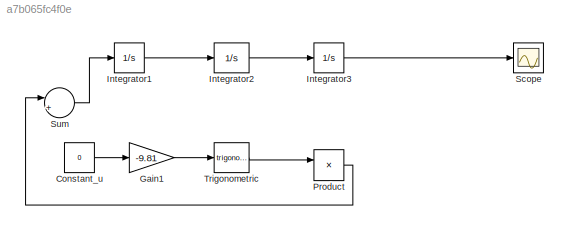
MODEL slx_a7b065fc4f0e
KIND model
BLOCK [Constant] Constant_u
  Value = 0
BLOCK [Gain] Gain1
  Gain = -9.81
  OutDataTypeStr = Inherit: Inherit via internal rule
  ParamDataTypeStr = Inherit: Inherit via internal rule
  SaturateOnIntegerOverflow = off
BLOCK [Integrator] Integrator1
  InitialCondition = 1
  Ports = [1, 1]
BLOCK [Integrator] Integrator2
  Ports = [1, 1]
BLOCK [Integrator] Integrator3
  Ports = [1, 1]
BLOCK [Product] Product
  InputSameDT = off
  OutDataTypeStr = Inherit: Inherit via internal rule
  Ports = [2, 1]
  RndMeth = Floor
  SaturateOnIntegerOverflow = off
BLOCK [Scope] Scope
  Floating = off
  NumInputPorts = 1
  Ports = [1]
  ShowLegends = off
BLOCK [Sum] Sum
  IconShape = round
  InputSameDT = off
  Inputs = |+-
  OutDataTypeStr = Inherit: Inherit via internal rule
  Ports = [2, 1]
  SaturateOnIntegerOverflow = off
BLOCK [Trigonometry] Trigonometric
  Ports = [1, 1]
LINE Constant_u:1 -> Gain1:1
LINE Gain1:1 -> Trigonometric:1
LINE Integrator1:1 -> Integrator2:1
LINE Integrator2:1 -> Integrator3:1
LINE Integrator3:1 -> Scope:1
LINE Product:1 -> Sum:1
LINE Sum:1 -> Integrator1:1
LINE Trigonometric:1 -> Product:1
